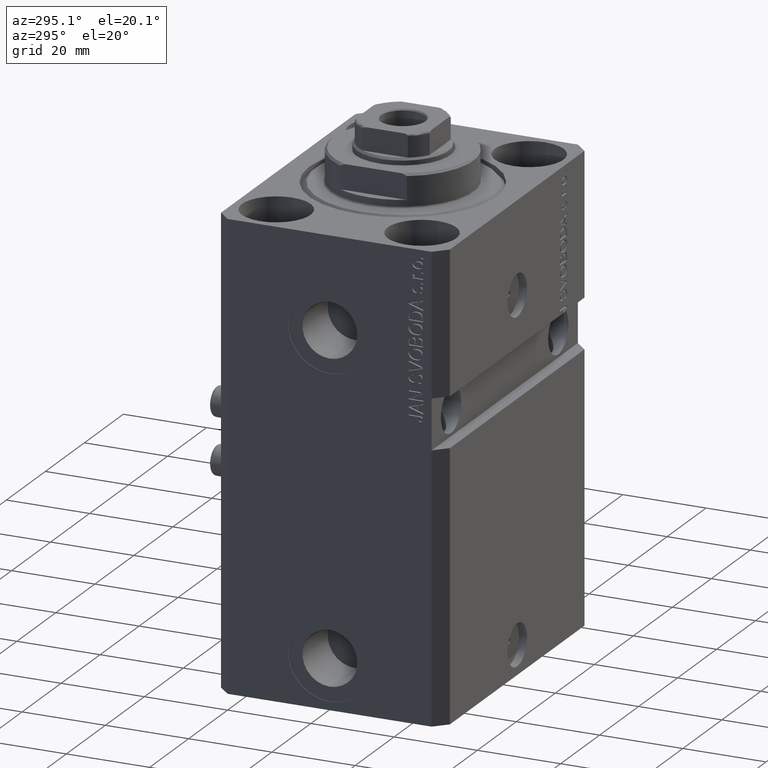
[diagram: clean part render]
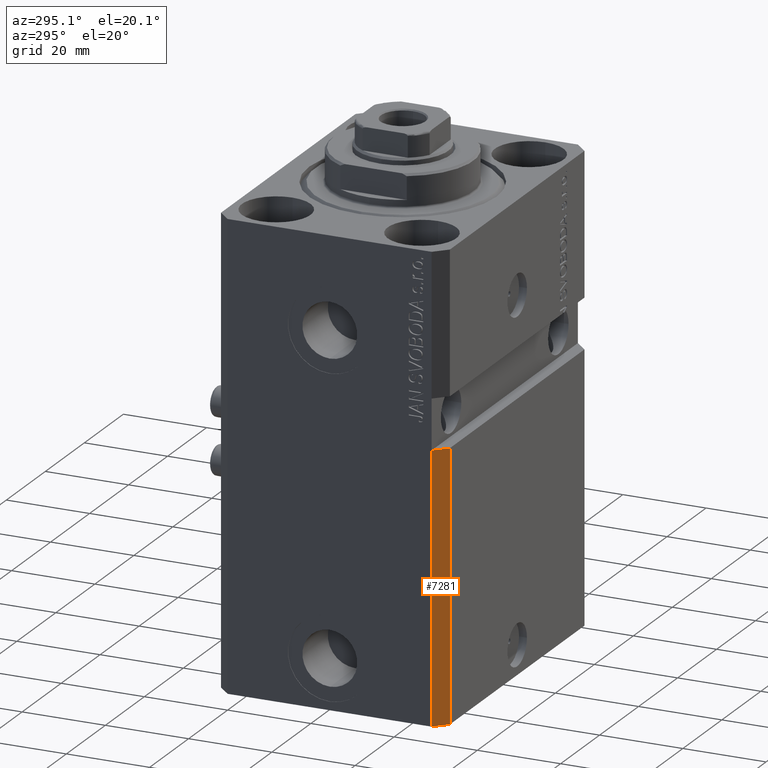
[diagram: same view with one face highlighted and labeled with its STEP entity id]
A machine part, auxiliary view. The second image highlights one B-rep face of the part: STEP entity #7281.
In plain terms, the highlighted planar face has unit normal (-0.7071, -0.7071, 0).
Its self-contained STEP definition (entity closure, byte-faithful):
#35 = VERTEX_POINT ( 'NONE', #37641 ) ;
#662 = EDGE_CURVE ( 'NONE', #35, #25810, #18060, .T. ) ;
#1394 = DIRECTION ( 'NONE',  ( 0.7071067811865483499, -0.7071067811865466846, 0.000000000000000000 ) ) ;
#3317 = LINE ( 'NONE', #14323, #5381 ) ;
#4976 = DIRECTION ( 'NONE',  ( 0.7071067811865483499, -0.7071067811865466846, -6.542051911182403718E-17 ) ) ;
#5066 = EDGE_CURVE ( 'NONE', #25810, #36794, #8739, .T. ) ;
#5381 = VECTOR ( 'NONE', #25318, 1000.000000000000000 ) ;
#7281 = ADVANCED_FACE ( 'NONE', ( #26764 ), #10820, .T. ) ;
#8739 = LINE ( 'NONE', #23337, #46014 ) ;
#9873 = CARTESIAN_POINT ( 'NONE',  ( -34.49999999999998579, -27.50000000000000000, -46.00000000000000000 ) ) ;
#10820 = PLANE ( 'NONE',  #24260 ) ;
#11527 = ORIENTED_EDGE ( 'NONE', *, *, #5066, .T. ) ;
#14263 = VECTOR ( 'NONE', #4976, 1000.000000000000000 ) ;
#14323 = CARTESIAN_POINT ( 'NONE',  ( -37.49999999999999289, -24.50000000000000000, -110.0000000000000000 ) ) ;
#18060 = LINE ( 'NONE', #47268, #47135 ) ;
#18363 = EDGE_CURVE ( 'NONE', #35, #40797, #3317, .T. ) ;
#20301 = CARTESIAN_POINT ( 'NONE',  ( -34.49999999999998579, -27.49999999999999645, -110.0000000000000000 ) ) ;
#21662 = ORIENTED_EDGE ( 'NONE', *, *, #18363, .F. ) ;
#22876 = EDGE_CURVE ( 'NONE', #40797, #36794, #34151, .T. ) ;
#23337 = CARTESIAN_POINT ( 'NONE',  ( -34.49999999999998579, -27.49999999999999645, -110.0000000000000000 ) ) ;
#24260 = AXIS2_PLACEMENT_3D ( 'NONE', #29009, #43592, #1394 ) ;
#25318 = DIRECTION ( 'NONE',  ( 0.000000000000000000, 0.000000000000000000, 1.000000000000000000 ) ) ;
#25810 = VERTEX_POINT ( 'NONE', #20301 ) ;
#26764 = FACE_OUTER_BOUND ( 'NONE', #30242, .T. ) ;
#29009 = CARTESIAN_POINT ( 'NONE',  ( -37.49999999999999289, -24.50000000000000000, -110.0000000000000000 ) ) ;
#30242 = EDGE_LOOP ( 'NONE', ( #30566, #21662, #41021, #11527 ) ) ;
#30566 = ORIENTED_EDGE ( 'NONE', *, *, #22876, .F. ) ;
#33354 = DIRECTION ( 'NONE',  ( 0.7071067811865483499, -0.7071067811865466846, 0.000000000000000000 ) ) ;
#34151 = LINE ( 'NONE', #37506, #14263 ) ;
#36794 = VERTEX_POINT ( 'NONE', #9873 ) ;
#37506 = CARTESIAN_POINT ( 'NONE',  ( -37.49999999999999289, -24.50000000000000355, -46.00000000000000000 ) ) ;
#37641 = CARTESIAN_POINT ( 'NONE',  ( -37.49999999999999289, -24.50000000000000000, -110.0000000000000000 ) ) ;
#37928 = DIRECTION ( 'NONE',  ( 0.000000000000000000, 0.000000000000000000, 1.000000000000000000 ) ) ;
#38169 = CARTESIAN_POINT ( 'NONE',  ( -37.50000000000000000, -24.50000000000000000, -46.00000000000000000 ) ) ;
#40797 = VERTEX_POINT ( 'NONE', #38169 ) ;
#41021 = ORIENTED_EDGE ( 'NONE', *, *, #662, .T. ) ;
#43592 = DIRECTION ( 'NONE',  ( -0.7071067811865466846, -0.7071067811865483499, 0.000000000000000000 ) ) ;
#46014 = VECTOR ( 'NONE', #37928, 1000.000000000000000 ) ;
#47135 = VECTOR ( 'NONE', #33354, 1000.000000000000000 ) ;
#47268 = CARTESIAN_POINT ( 'NONE',  ( -37.49999999999999289, -24.50000000000000000, -110.0000000000000000 ) ) ;